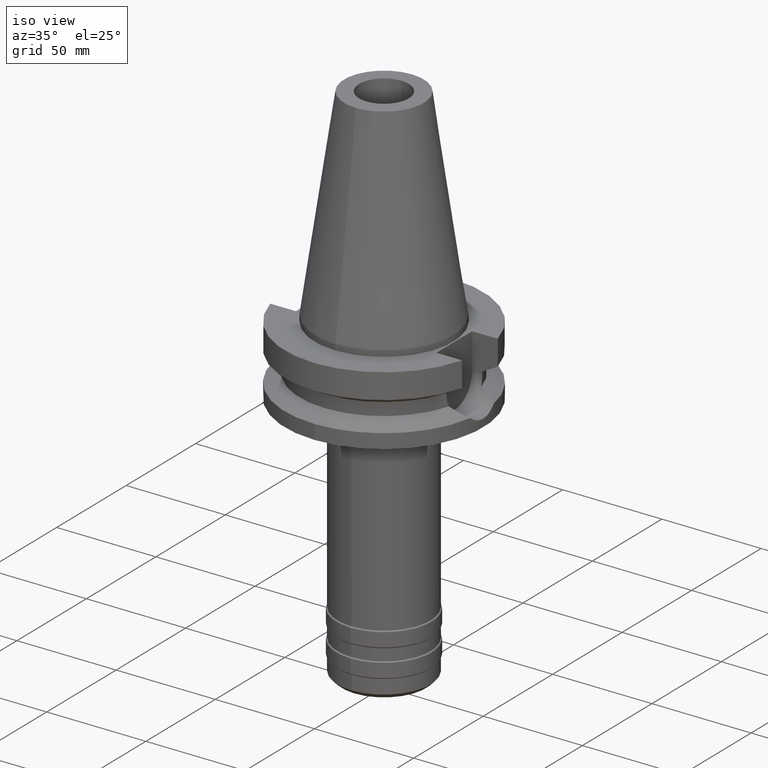
[diagram: clean part render]
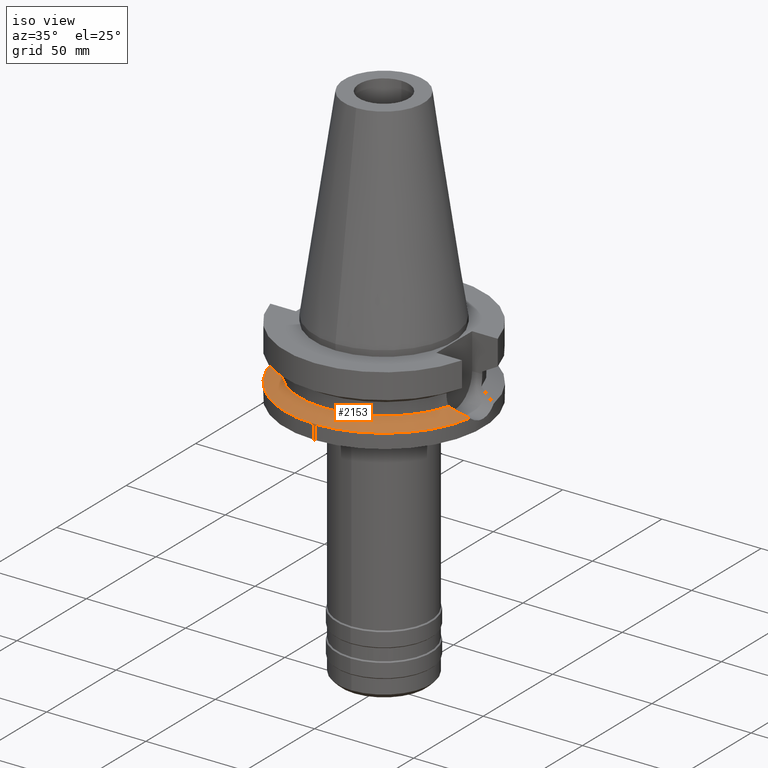
[diagram: same view with one face highlighted and labeled with its STEP entity id]
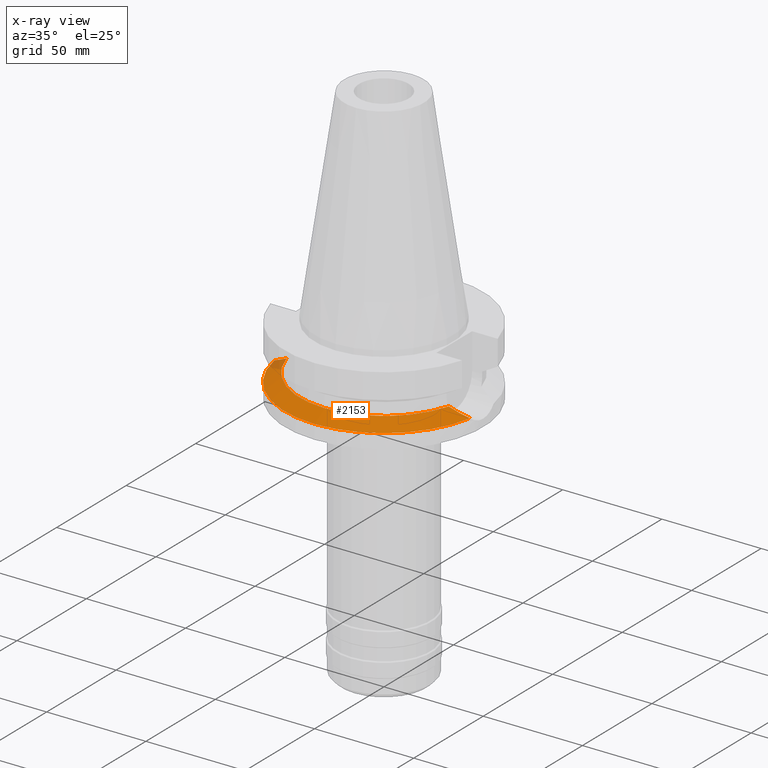
[diagram: x-ray of the same camera — body ghosted, the highlighted face saturated]
A machine part, iso view. The second image highlights one B-rep face of the part: STEP entity #2153.
The next image is the same camera in x-ray: the body ghosted, the highlighted face saturated — about 3% of this face is hidden behind the body in this view.
In plain terms, the highlighted conical surface has half-angle 60 deg.
Its self-contained STEP definition (entity closure, byte-faithful):
#670=CARTESIAN_POINT('',(4.926250064874E1,-8.556052234130E0,-3.073730776427E1));
#713=CARTESIAN_POINT('',(-4.926250064874E1,-8.556052234130E0,
-3.073730776427E1));
#714=CARTESIAN_POINT('',(-4.844269841882E1,-9.026508818872E0,
-3.031745568359E1));
#715=CARTESIAN_POINT('',(-4.671581003739E1,-9.879389051693E0,
-2.943201344814E1));
#716=CARTESIAN_POINT('',(-4.393278793648E1,-1.091929921920E1,
-2.800059465389E1));
#717=CARTESIAN_POINT('',(-4.190228263198E1,-1.148113274515E1,
-2.695194026565E1));
#718=CARTESIAN_POINT('',(-4.085052569294E1,-1.172538061688E1,
-2.640718074535E1));
#723=CARTESIAN_POINT('',(0.E0,0.E0,-2.640718074535E1));
#724=DIRECTION('',(0.E0,0.E0,1.E0));
#725=DIRECTION('',(-9.611888398338E-1,-2.758913086325E-1,0.E0));
#726=AXIS2_PLACEMENT_3D('',#723,#724,#725);
#731=CARTESIAN_POINT('',(0.E0,0.E0,-2.640718074535E1));
#732=DIRECTION('',(0.E0,0.E0,1.E0));
#733=DIRECTION('',(0.E0,-1.E0,0.E0));
#734=AXIS2_PLACEMENT_3D('',#731,#732,#733);
#739=CARTESIAN_POINT('',(4.085052569294E1,-1.172538061688E1,-2.640718074535E1));
#740=CARTESIAN_POINT('',(4.196881650750E1,-1.146568168712E1,-2.698640161386E1));
#741=CARTESIAN_POINT('',(4.408719402933E1,-1.087344782091E1,-2.808023799621E1));
#742=CARTESIAN_POINT('',(4.693522472477E1,-9.783082344608E0,-2.954465017571E1));
#743=CARTESIAN_POINT('',(4.853272013738E1,-8.974848419911E0,-3.036355924914E1));
#744=CARTESIAN_POINT('',(4.926250064874E1,-8.556052234130E0,-3.073730776427E1));
#749=CARTESIAN_POINT('',(0.E0,0.E0,-3.073730776427E1));
#750=DIRECTION('',(0.E0,0.E0,-1.E0));
#751=DIRECTION('',(9.852500129747E-1,-1.711210446826E-1,0.E0));
#752=AXIS2_PLACEMENT_3D('',#749,#750,#751);
#757=CARTESIAN_POINT('',(0.E0,0.E0,-3.073730776427E1));
#758=DIRECTION('',(0.E0,0.E0,-1.E0));
#759=DIRECTION('',(0.E0,-1.E0,0.E0));
#760=AXIS2_PLACEMENT_3D('',#757,#758,#759);
#1384=VERTEX_POINT('',#670);
#1387=CARTESIAN_POINT('',(0.E0,-5.E1,-3.073730776427E1));
#1388=VERTEX_POINT('',#1387);
#1389=VERTEX_POINT('',#739);
#1400=VERTEX_POINT('',#713);
#1401=VERTEX_POINT('',#718);
#1402=CARTESIAN_POINT('',(0.E0,-4.25E1,-2.640718074535E1));
#1403=VERTEX_POINT('',#1402);
#2136=CARTESIAN_POINT('',(0.E0,0.E0,-2.857224425481E1));
#2137=DIRECTION('',(0.E0,0.E0,-1.E0));
#2138=DIRECTION('',(0.E0,-1.E0,0.E0));
#2139=AXIS2_PLACEMENT_3D('',#2136,#2137,#2138);
#2140=CONICAL_SURFACE('',#2139,4.625E1,6.E1);
#2142=ORIENTED_EDGE('',*,*,#2141,.T.);
#2144=ORIENTED_EDGE('',*,*,#2143,.T.);
#2146=ORIENTED_EDGE('',*,*,#2145,.T.);
#2147=ORIENTED_EDGE('',*,*,#2117,.T.);
#2148=ORIENTED_EDGE('',*,*,#2105,.T.);
#2150=ORIENTED_EDGE('',*,*,#2149,.T.);
#2151=EDGE_LOOP('',(#2142,#2144,#2146,#2147,#2148,#2150));
#2152=FACE_OUTER_BOUND('',#2151,.F.);
#719=B_SPLINE_CURVE_WITH_KNOTS('',3,(#713,#714,#715,#716,#717,#718),
.UNSPECIFIED.,.F.,.F.,(4,1,1,4),(0.E0,3.333333333333E-1,6.666666666667E-1,1.E0),
.UNSPECIFIED.);
#727=CIRCLE('',#726,4.25E1);
#735=CIRCLE('',#734,4.25E1);
#745=B_SPLINE_CURVE_WITH_KNOTS('',3,(#739,#740,#741,#742,#743,#744),
.UNSPECIFIED.,.F.,.F.,(4,1,1,4),(0.E0,3.333333333333E-1,6.666666666667E-1,1.E0),
.UNSPECIFIED.);
#753=CIRCLE('',#752,5.E1);
#761=CIRCLE('',#760,5.E1);
#2105=EDGE_CURVE('',#1384,#1388,#753,.T.);
#2117=EDGE_CURVE('',#1389,#1384,#745,.T.);
#2141=EDGE_CURVE('',#1400,#1401,#719,.T.);
#2143=EDGE_CURVE('',#1401,#1403,#727,.T.);
#2145=EDGE_CURVE('',#1403,#1389,#735,.T.);
#2149=EDGE_CURVE('',#1388,#1400,#761,.T.);
#2153=ADVANCED_FACE('',(#2152),#2140,.T.);